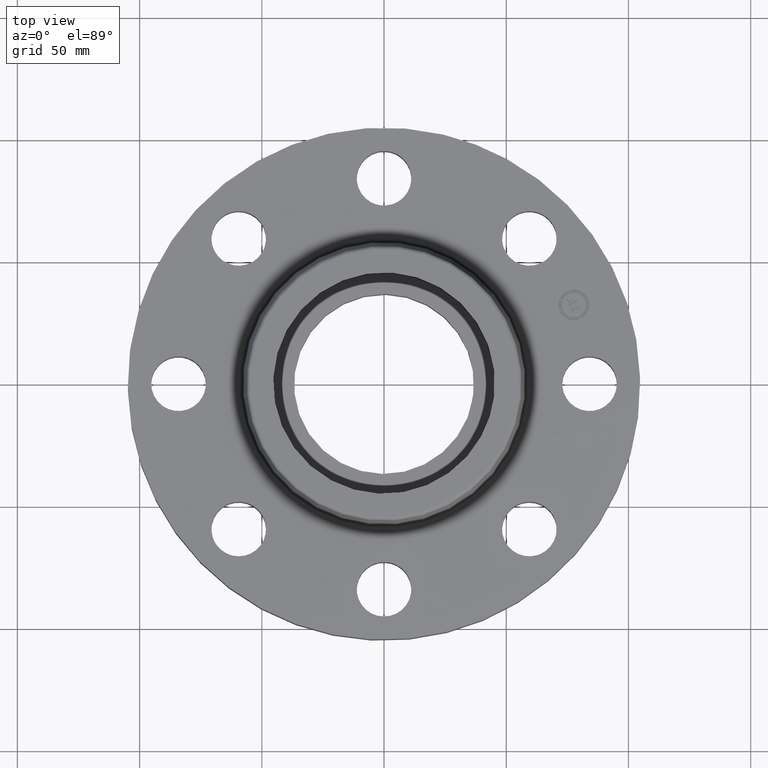
[diagram: clean part render]
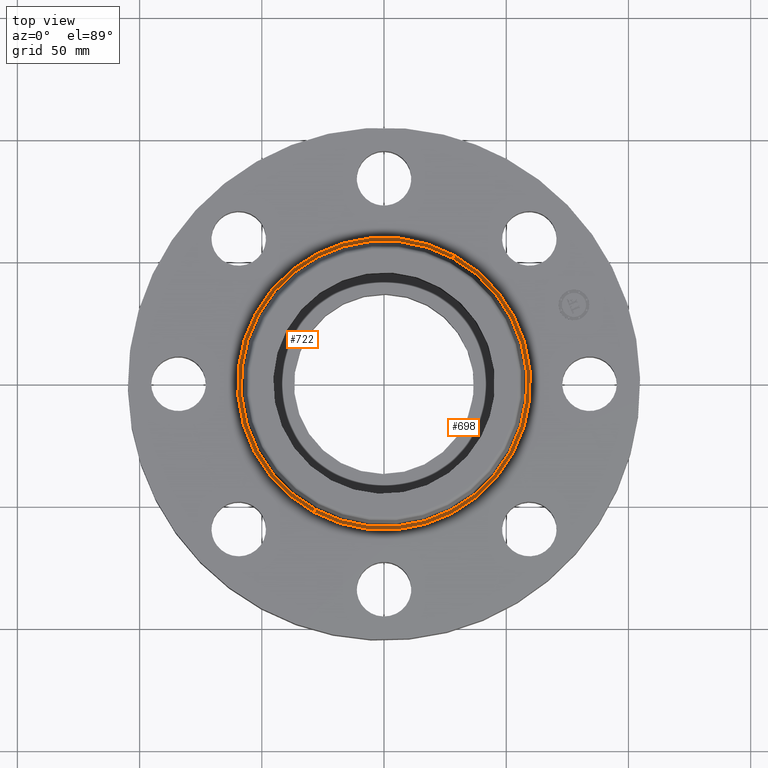
[diagram: same view with one multi-face feature highlighted, each face labeled with its STEP entity id]
A machine part, top view. The highlighted faces form ONE feature: a constant-radius fillet chain: 2 tangent blend faces with common blend radius 1.524 mm. The faces share edges in the B-rep.
Their STEP definitions:
[1] entity #722 (Torus):
#472=AXIS2_PLACEMENT_3D('Circle Axis2P3D',#470,#471,$) ;
#684=AXIS2_PLACEMENT_3D('Circle Axis2P3D',#682,#683,$) ;
#689=AXIS2_PLACEMENT_3D('Circle Axis2P3D',#687,#688,$) ;
#709=AXIS2_PLACEMENT_3D('Torus Axis2P3D',#706,#707,#708) ;
#713=AXIS2_PLACEMENT_3D('Circle Axis2P3D',#711,#712,$) ;
#436=CARTESIAN_POINT('Vertex',(1.10328162249,2.01954346356,1.10958110934)) ;
#438=CARTESIAN_POINT('Vertex',(-1.10328162249,-2.01954346356,1.10958110934)) ;
#470=CARTESIAN_POINT('Axis2P3D Location',(0.,0.,1.10958110934)) ;
#677=CARTESIAN_POINT('Vertex',(1.13161014174,2.07139847022,1.06)) ;
#679=CARTESIAN_POINT('Vertex',(-1.13161014174,-2.07139847022,1.06)) ;
#682=CARTESIAN_POINT('Axis2P3D Location',(1.13161014174,2.07139847022,1.12)) ;
#687=CARTESIAN_POINT('Axis2P3D Location',(-1.13161014174,-2.07139847022,1.12)) ;
#706=CARTESIAN_POINT('Axis2P3D Location',(0.,0.,1.12)) ;
#711=CARTESIAN_POINT('Axis2P3D Location',(0.,0.,1.06)) ;
#471=DIRECTION('Axis2P3D Direction',(-0.,0.,-0.0393700787402)) ;
#683=DIRECTION('Axis2P3D Direction',(-0.0345504945626,0.0188750212049,0.)) ;
#688=DIRECTION('Axis2P3D Direction',(0.0345504945626,-0.0188750212049,0.)) ;
#707=DIRECTION('Axis2P3D Direction',(0.,0.,-0.0393700787402)) ;
#708=DIRECTION('Axis2P3D XDirection',(-0.0188750212049,-0.0345504945626,0.)) ;
#712=DIRECTION('Axis2P3D Direction',(-0.,0.,-0.0393700787402)) ;
#717=ORIENTED_EDGE('',*,*,#715,.F.) ;
#718=ORIENTED_EDGE('',*,*,#691,.T.) ;
#719=ORIENTED_EDGE('',*,*,#474,.T.) ;
#720=ORIENTED_EDGE('',*,*,#686,.F.) ;
#722=ADVANCED_FACE('PartBody',(#721),#710,.F.) ;
#473=CIRCLE('generated circle',#472,2.30125751271) ;
#685=CIRCLE('generated circle',#684,0.0600000000002) ;
#690=CIRCLE('generated circle',#689,0.0600000000002) ;
#714=CIRCLE('generated circle',#713,2.36034597788) ;
#710=TOROIDAL_SURFACE('homeo Torus',#709,2.36034597788,0.0600000000002) ;
#474=EDGE_CURVE('',#439,#437,#473,.T.) ;
#686=EDGE_CURVE('',#678,#437,#685,.T.) ;
#691=EDGE_CURVE('',#680,#439,#690,.T.) ;
#715=EDGE_CURVE('',#680,#678,#714,.T.) ;
#716=EDGE_LOOP('',(#717,#718,#719,#720)) ;
#721=FACE_OUTER_BOUND('',#716,.T.) ;
#437=VERTEX_POINT('',#436) ;
#439=VERTEX_POINT('',#438) ;
#678=VERTEX_POINT('',#677) ;
#680=VERTEX_POINT('',#679) ;
[2] entity #698 (Torus):
#434=AXIS2_PLACEMENT_3D('Circle Axis2P3D',#432,#433,$) ;
#671=AXIS2_PLACEMENT_3D('Torus Axis2P3D',#668,#669,#670) ;
#675=AXIS2_PLACEMENT_3D('Circle Axis2P3D',#673,#674,$) ;
#684=AXIS2_PLACEMENT_3D('Circle Axis2P3D',#682,#683,$) ;
#689=AXIS2_PLACEMENT_3D('Circle Axis2P3D',#687,#688,$) ;
#432=CARTESIAN_POINT('Axis2P3D Location',(0.,0.,1.10958110934)) ;
#436=CARTESIAN_POINT('Vertex',(1.10328162249,2.01954346356,1.10958110934)) ;
#438=CARTESIAN_POINT('Vertex',(-1.10328162249,-2.01954346356,1.10958110934)) ;
#668=CARTESIAN_POINT('Axis2P3D Location',(0.,0.,1.12)) ;
#673=CARTESIAN_POINT('Axis2P3D Location',(0.,0.,1.06)) ;
#677=CARTESIAN_POINT('Vertex',(1.13161014174,2.07139847022,1.06)) ;
#679=CARTESIAN_POINT('Vertex',(-1.13161014174,-2.07139847022,1.06)) ;
#682=CARTESIAN_POINT('Axis2P3D Location',(1.13161014174,2.07139847022,1.12)) ;
#687=CARTESIAN_POINT('Axis2P3D Location',(-1.13161014174,-2.07139847022,1.12)) ;
#433=DIRECTION('Axis2P3D Direction',(-0.,0.,-0.0393700787402)) ;
#669=DIRECTION('Axis2P3D Direction',(0.,0.,-0.0393700787402)) ;
#670=DIRECTION('Axis2P3D XDirection',(0.0188750212049,0.0345504945626,0.)) ;
#674=DIRECTION('Axis2P3D Direction',(-0.,0.,-0.0393700787402)) ;
#683=DIRECTION('Axis2P3D Direction',(-0.0345504945626,0.0188750212049,0.)) ;
#688=DIRECTION('Axis2P3D Direction',(0.0345504945626,-0.0188750212049,0.)) ;
#693=ORIENTED_EDGE('',*,*,#681,.F.) ;
#694=ORIENTED_EDGE('',*,*,#686,.T.) ;
#695=ORIENTED_EDGE('',*,*,#440,.T.) ;
#696=ORIENTED_EDGE('',*,*,#691,.F.) ;
#698=ADVANCED_FACE('PartBody',(#697),#672,.F.) ;
#435=CIRCLE('generated circle',#434,2.30125751271) ;
#676=CIRCLE('generated circle',#675,2.36034597788) ;
#685=CIRCLE('generated circle',#684,0.0600000000002) ;
#690=CIRCLE('generated circle',#689,0.0600000000002) ;
#672=TOROIDAL_SURFACE('homeo Torus',#671,2.36034597788,0.0600000000002) ;
#440=EDGE_CURVE('',#437,#439,#435,.T.) ;
#681=EDGE_CURVE('',#678,#680,#676,.T.) ;
#686=EDGE_CURVE('',#678,#437,#685,.T.) ;
#691=EDGE_CURVE('',#680,#439,#690,.T.) ;
#692=EDGE_LOOP('',(#693,#694,#695,#696)) ;
#697=FACE_OUTER_BOUND('',#692,.T.) ;
#437=VERTEX_POINT('',#436) ;
#439=VERTEX_POINT('',#438) ;
#678=VERTEX_POINT('',#677) ;
#680=VERTEX_POINT('',#679) ;